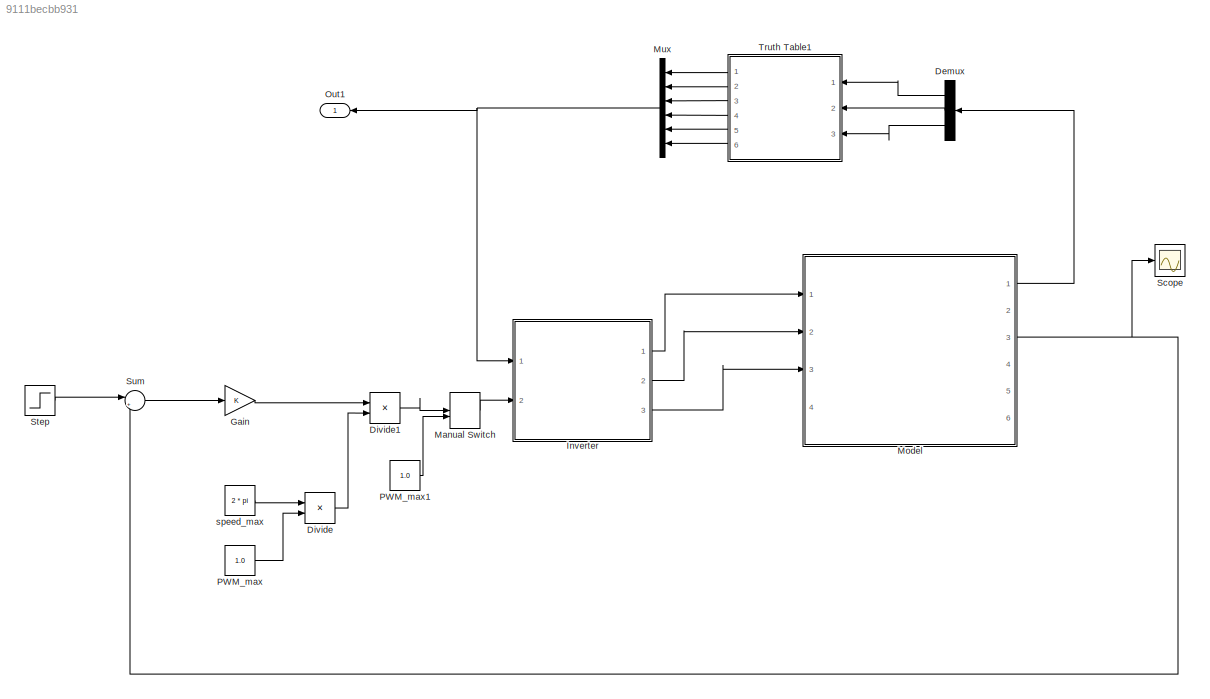
MODEL slx_9111becbb931
KIND model
CONFIG AbsTol = auto
CONFIG FixedStep = auto
CONFIG MaxStep = 0.01
CONFIG MinStep = auto
CONFIG RelTol = 1e-3
CONFIG SampleTimeConstraint = Unconstrained
CONFIG Solver = VariableStepAuto
CONFIG SolverMode = Auto
CONFIG SolverName = VariableStepAuto
CONFIG StartTime = 0.0
CONFIG StopTime = inf
BLOCK [Demux] Demux
  DisplayOption = bar
  Outputs = 3
  Ports = [1, 3]
BLOCK [Product] Divide
  InputSameDT = off
  Inputs = */
  OutDataTypeStr = Inherit: Inherit via internal rule
  Ports = [2, 1]
  RndMeth = Floor
  SaturateOnIntegerOverflow = off
BLOCK [Product] Divide1
  InputSameDT = off
  Inputs = */
  OutDataTypeStr = Inherit: Inherit via internal rule
  Ports = [2, 1]
  RndMeth = Floor
  SaturateOnIntegerOverflow = off
BLOCK [Gain] Gain
  OutDataTypeStr = Inherit: Inherit via internal rule
  ParamDataTypeStr = Inherit: Inherit via internal rule
  SaturateOnIntegerOverflow = off
BLOCK [ModelReference] Inverter
  CopyOfModelName = PWM_module.slx
  ModelNameDialog = PWM_module.slx
  ModelReferenceVersion = 1.39
  Ports = [2, 3]
  Variant = off
BLOCK [ManualSwitch] Manual Switch
  CurrentSetting = 0
BLOCK [ModelReference] Model
  CopyOfModelName = BLDCmotor_modeling.slx
  ModelNameDialog = BLDCmotor_modeling.slx
  ModelReferenceVersion = 1.68
  Ports = [4, 6]
  Variant = off
BLOCK [Mux] Mux
  DisplayOption = bar
  Inputs = 6
  Ports = [6, 1]
BLOCK [Outport] Out1
  IconDisplay = Port number
BLOCK [Constant] PWM_max
  Value = 1.0
BLOCK [Constant] PWM_max1
  Value = 1.0
BLOCK [Scope] Scope
  Ports = [1]
  ScopeSpecificationString = Simulink.scopes.TimeScopeBlockCfg('CurrentConfiguration', extmgr.ConfigurationSet(extmgr.Configuration('Core','General UI',true),extmgr.Configuration('Core','Source UI',true),extmgr.Configuration('Sources','WiredSimulink',true),extmgr.Configuration('Visuals','Time Domain',true,'SerializedDisplays',{struct('MinYLimReal','-0.15169','MaxYLimReal','1.36523','YLabelReal','','MinYLimMag','0.00000','MaxY...<+1480ch>
BLOCK [Step] Step
  After = 2* pi
  SampleTime = 0
  Time = 0
BLOCK [Sum] Sum
  IconShape = round
  InputSameDT = off
  Inputs = |+-
  OutDataTypeStr = Inherit: Inherit via internal rule
  Ports = [2, 1]
  SaturateOnIntegerOverflow = off
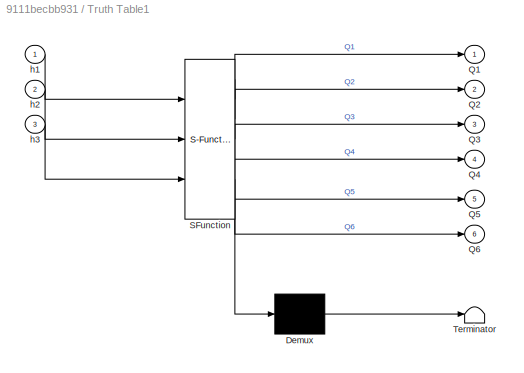
BLOCK [SubSystem] Truth Table1
  ErrorFcn = Stateflow.Translate.translate
  PermitHierarchicalResolution = ExplicitOnly
  Ports = [3, 6]
  RequestExecContextInheritance = off
  SFBlockType = Truth Table
  TreatAsAtomicUnit = on
  Variant = off
BLOCK [Demux] Truth Table1/ Demux 
  Outputs = 1
  Ports = [1, 1]
BLOCK [S-Function] Truth Table1/ SFunction 
  EnableBusSupport = on
  FunctionName = sf_sfun
  PortCounts = [3 7]
  Ports = [3, 7]
  SFunctionDeploymentMode = off
  Tag = Stateflow S-Function BLDCmotor_controll 1
BLOCK [Terminator] Truth Table1/ Terminator 
BLOCK [Outport] Truth Table1/Q1
  IconDisplay = Port number
BLOCK [Outport] Truth Table1/Q2
  IconDisplay = Port number
  Port = 2
BLOCK [Outport] Truth Table1/Q3
  IconDisplay = Port number
  Port = 3
BLOCK [Outport] Truth Table1/Q4
  IconDisplay = Port number
  Port = 4
BLOCK [Outport] Truth Table1/Q5
  IconDisplay = Port number
  Port = 5
BLOCK [Outport] Truth Table1/Q6
  IconDisplay = Port number
  Port = 6
BLOCK [Inport] Truth Table1/h1
  IconDisplay = Port number
BLOCK [Inport] Truth Table1/h2
  IconDisplay = Port number
  Port = 2
BLOCK [Inport] Truth Table1/h3
  IconDisplay = Port number
  Port = 3
BLOCK [Constant] speed_max
  Value = 2 * pi
LINE Demux:1 -> Truth Table1:1
LINE Demux:2 -> Truth Table1:2
LINE Demux:3 -> Truth Table1:3
LINE Divide1:1 -> Manual Switch:1
LINE Divide:1 -> Divide1:2
LINE Gain:1 -> Divide1:1
LINE Inverter:1 -> Model:1
LINE Inverter:2 -> Model:2
LINE Inverter:3 -> Model:3
LINE Manual Switch:1 -> Inverter:2
LINE Model:1 -> Demux:1
NET Model:3 -> Scope:1, Sum:2
NET Mux:1 -> Inverter:1, Out1:1
LINE PWM_max1:1 -> Manual Switch:2
LINE PWM_max:1 -> Divide:2
LINE Step:1 -> Sum:1
LINE Sum:1 -> Gain:1
LINE Truth Table1:1 -> Mux:1
LINE Truth Table1:2 -> Mux:2
LINE Truth Table1:3 -> Mux:3
LINE Truth Table1:4 -> Mux:4
LINE Truth Table1:5 -> Mux:5
LINE Truth Table1:6 -> Mux:6
LINE speed_max:1 -> Divide:1
note: NET lines group one-source signal fan-out (src -> all destinations, sorted); 1:1 wires keep LINE
CHART Truth Table1 states=1 transitions=1
  STATE_LABEL 'tt_blk_kernel'
  STATE_LABEL 'SCRIPT:\nfunction [Q1, Q2, Q3, Q4, Q5, Q6] = fcn(h1, h2, h3)\n\naVarTruthTableCondition_1 = false;\naVarTruthTableCondition_2 = false;\naVarTruthTableCondition_3 = false;\naVarTruthTableCondition_4 = false;\naVarTruthTableCondition_5 = false;\naVarTruthTableCondition_6 = false;\n\n\n% state 1\n\naVarTruthTableCondition_1 = logical(h1 == 1 && h2 == 0 && h3 == 0);\n\n% state 2\n\naVarTruthTableCondition_2 = logical(...<+2275ch>'
